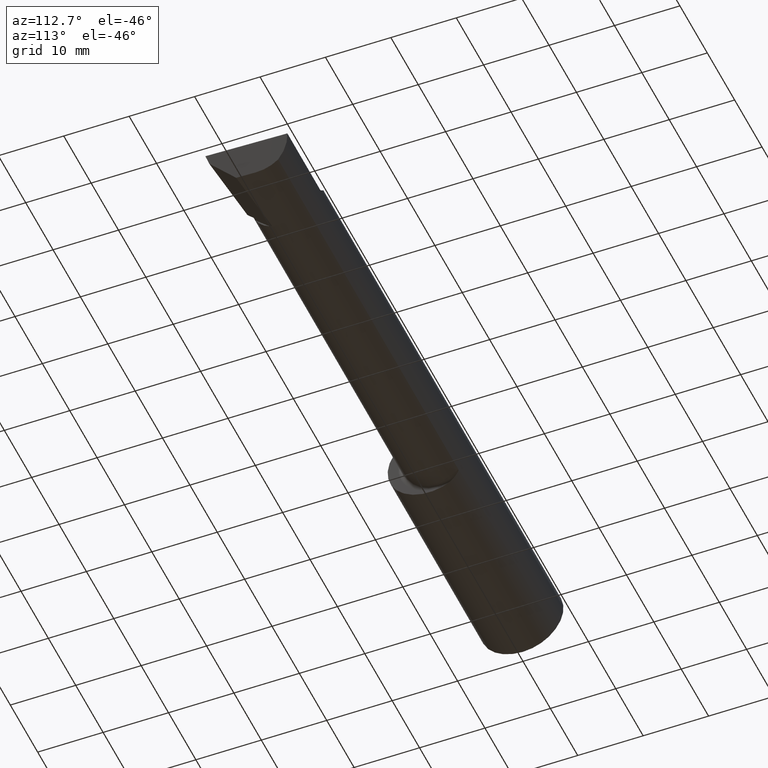
[diagram: clean part render]
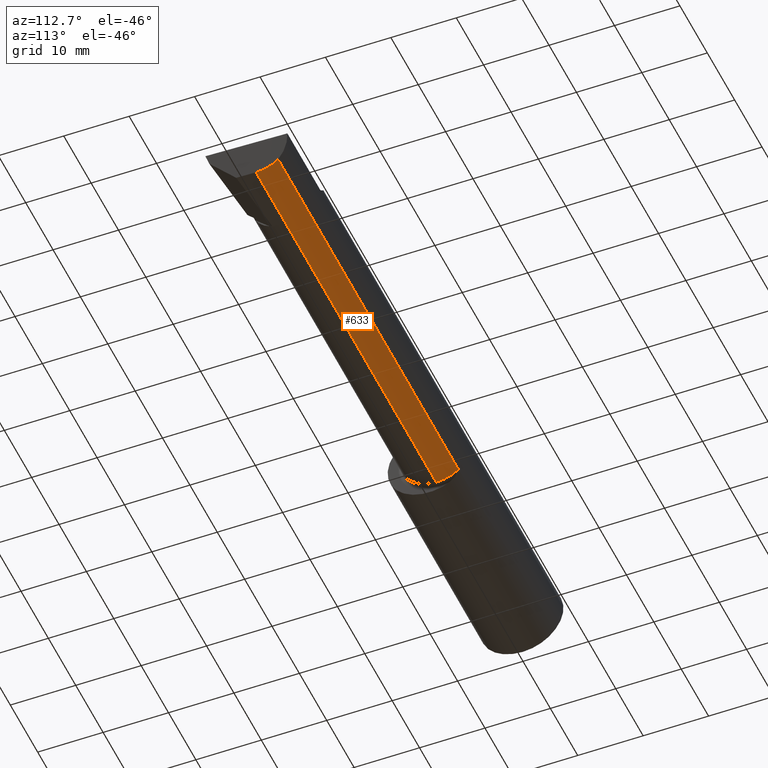
[diagram: same view with one face highlighted and labeled with its STEP entity id]
A machine part, auxiliary view. The second image highlights one B-rep face of the part: STEP entity #633.
In plain terms, the highlighted cylindrical surface (partial cylindrical patch) has radius 5.414 mm, axis along (-1, -0, -0).
Its self-contained STEP definition (entity closure, byte-faithful):
#2 = CYLINDRICAL_SURFACE ( 'NONE', #194, 0.2131500000000001172 ) ;
#36 = LINE ( 'NONE', #327, #710 ) ;
#58 = ORIENTED_EDGE ( 'NONE', *, *, #534, .F. ) ;
#83 = EDGE_CURVE ( 'NONE', #702, #169, #523, .T. ) ;
#85 = VERTEX_POINT ( 'NONE', #320 ) ;
#99 = CARTESIAN_POINT ( 'NONE',  ( 3.968970726278978400, 0.1868028301886787701, -0.1659208399614094387 ) ) ;
#115 = ORIENTED_EDGE ( 'NONE', *, *, #571, .F. ) ;
#143 = ORIENTED_EDGE ( 'NONE', *, *, #678, .T. ) ;
#150 = VERTEX_POINT ( 'NONE', #674 ) ;
#151 = DIRECTION ( 'NONE',  ( -1.000000000000000000, -0.000000000000000000, -0.000000000000000000 ) ) ;
#156 = CARTESIAN_POINT ( 'NONE',  ( 2.459999999999999964, 0.1868028301886787701, -0.1659208399614094387 ) ) ;
#165 = EDGE_CURVE ( 'NONE', #360, #85, #36, .T. ) ;
#169 = VERTEX_POINT ( 'NONE', #562 ) ;
#176 = DIRECTION ( 'NONE',  ( -1.000000000000000000, -0.000000000000000000, -0.000000000000000000 ) ) ;
#190 = CARTESIAN_POINT ( 'NONE',  ( 3.966963271960172399, 0.05299999999999996381, -0.2131499999999999784 ) ) ;
#194 = AXIS2_PLACEMENT_3D ( 'NONE', #635, #392, #281 ) ;
#201 = EDGE_LOOP ( 'NONE', ( #380, #143, #340, #115, #58 ) ) ;
#214 =( BOUNDED_CURVE ( )  B_SPLINE_CURVE ( 3, ( #615, #608, #493, #99 ),
 .UNSPECIFIED., .F., .T. ) 
 B_SPLINE_CURVE_WITH_KNOTS ( ( 4, 4 ),
 ( 6.060671081087565248, 6.739317872789799324 ),
 .UNSPECIFIED. ) 
 CURVE ( )  GEOMETRIC_REPRESENTATION_ITEM ( )  RATIONAL_B_SPLINE_CURVE ( ( 1.000000000000000000, 0.9619867256453029647, 0.9619867256453029647, 1.000000000000000000 ) ) 
 REPRESENTATION_ITEM ( '' )  );
#281 = DIRECTION ( 'NONE',  ( 0.000000000000000000, 0.000000000000000000, 1.000000000000000000 ) ) ;
#293 = VECTOR ( 'NONE', #176, 39.37007874015748143 ) ;
#320 = CARTESIAN_POINT ( 'NONE',  ( 3.544999999999999929, 0.05299999999999996381, -0.2131499999999999784 ) ) ;
#324 = DIRECTION ( 'NONE',  ( 0.000000000000000000, 0.000000000000000000, 1.000000000000000000 ) ) ;
#327 = CARTESIAN_POINT ( 'NONE',  ( 4.000000000000000000, 0.05299999999999996381, -0.2131499999999999784 ) ) ;
#334 = DIRECTION ( 'NONE',  ( -1.000000000000000000, -0.000000000000000000, -0.000000000000000000 ) ) ;
#340 = ORIENTED_EDGE ( 'NONE', *, *, #83, .F. ) ;
#360 = VERTEX_POINT ( 'NONE', #190 ) ;
#380 = ORIENTED_EDGE ( 'NONE', *, *, #165, .T. ) ;
#384 = AXIS2_PLACEMENT_3D ( 'NONE', #501, #746, #324 ) ;
#392 = DIRECTION ( 'NONE',  ( -1.000000000000000000, -0.000000000000000000, -0.000000000000000000 ) ) ;
#462 = CARTESIAN_POINT ( 'NONE',  ( 0.000000000000000000, 0.05300000000000001238, -0.2131500000000001172 ) ) ;
#493 = CARTESIAN_POINT ( 'NONE',  ( 3.966341717494392682, 0.1485302233682053441, -0.1967848538638759803 ) ) ;
#501 = CARTESIAN_POINT ( 'NONE',  ( 1.375000000000000000, 0.05299999999999998462, 0.000000000000000000 ) ) ;
#523 = CIRCLE ( 'NONE', #384, 0.2131500000000002559 ) ;
#534 = EDGE_CURVE ( 'NONE', #360, #150, #214, .T. ) ;
#557 = VECTOR ( 'NONE', #151, 39.37007874015748143 ) ;
#560 = LINE ( 'NONE', #462, #293 ) ;
#562 = CARTESIAN_POINT ( 'NONE',  ( 1.375000000000000000, 0.05300000000000001238, -0.2131500000000002559 ) ) ;
#566 = CARTESIAN_POINT ( 'NONE',  ( 1.375000000000000000, 0.1868028301886777709, -0.1659208399614103824 ) ) ;
#571 = EDGE_CURVE ( 'NONE', #150, #702, #725, .T. ) ;
#608 = CARTESIAN_POINT ( 'NONE',  ( 3.965646124279057716, 0.1021668565906566351, -0.2131500000000001449 ) ) ;
#615 = CARTESIAN_POINT ( 'NONE',  ( 3.966963271960172399, 0.05299999999999996381, -0.2131499999999999784 ) ) ;
#633 = ADVANCED_FACE ( 'NONE', ( #754 ), #2, .T. ) ;
#635 = CARTESIAN_POINT ( 'NONE',  ( 0.000000000000000000, 0.05299999999999998462, 0.000000000000000000 ) ) ;
#674 = CARTESIAN_POINT ( 'NONE',  ( 3.968970726278978400, 0.1868028301886787701, -0.1659208399614094387 ) ) ;
#678 = EDGE_CURVE ( 'NONE', #85, #169, #560, .T. ) ;
#702 = VERTEX_POINT ( 'NONE', #566 ) ;
#710 = VECTOR ( 'NONE', #334, 39.37007874015748143 ) ;
#725 = LINE ( 'NONE', #156, #557 ) ;
#746 = DIRECTION ( 'NONE',  ( -1.000000000000000000, -0.000000000000000000, -0.000000000000000000 ) ) ;
#754 = FACE_OUTER_BOUND ( 'NONE', #201, .T. ) ;